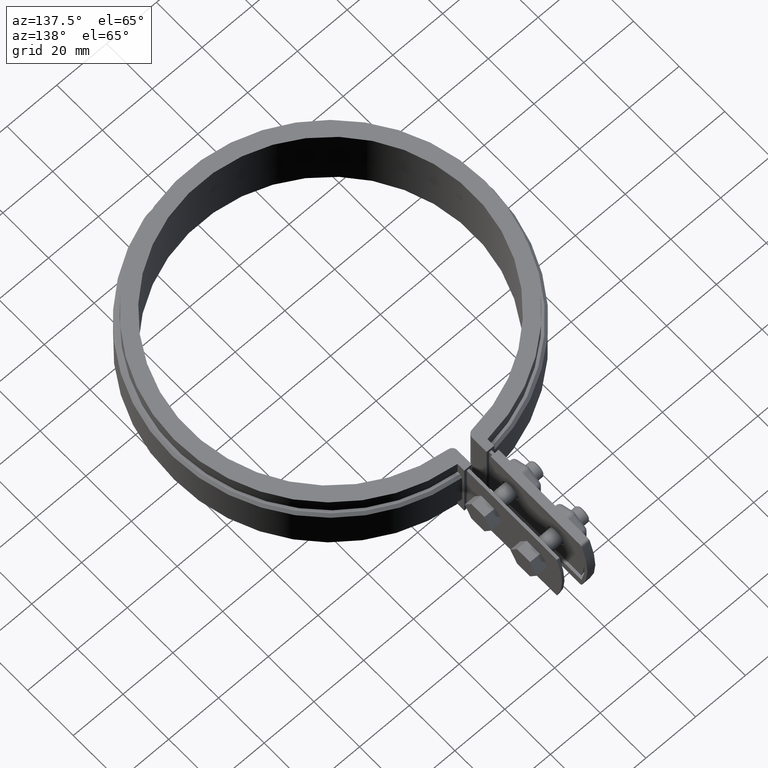
[diagram: clean part render]
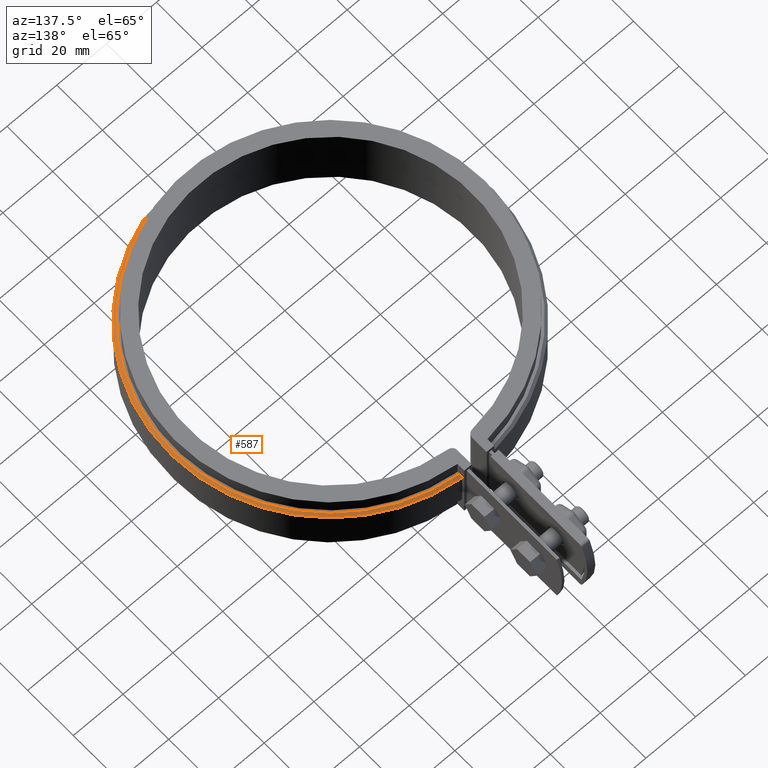
[diagram: same view with one face highlighted and labeled with its STEP entity id]
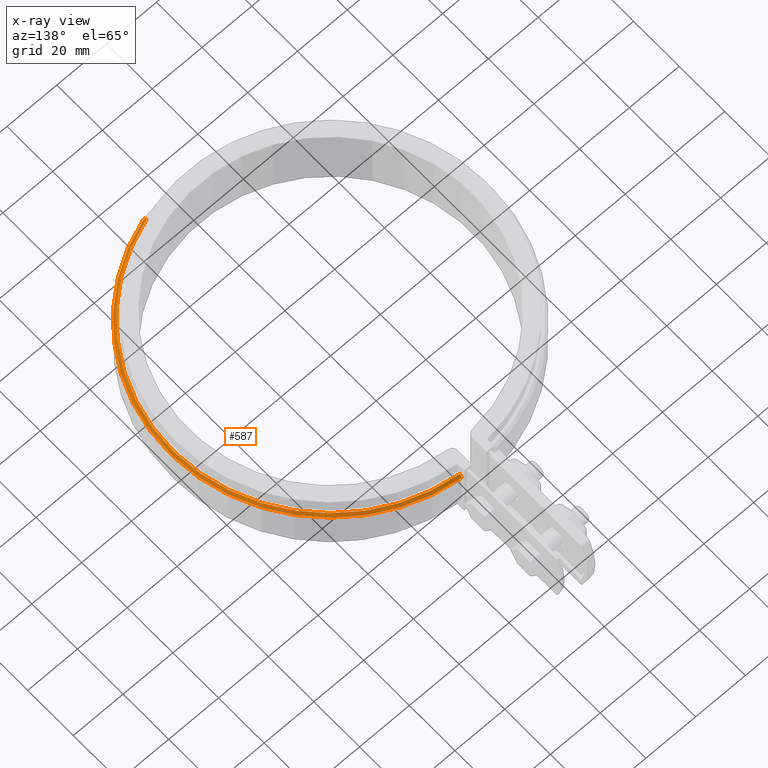
[diagram: x-ray of the same camera — body ghosted, the highlighted face saturated]
A machine part, auxiliary view. The second image highlights one B-rep face of the part: STEP entity #587.
The next image is the same camera in x-ray: the body ghosted, the highlighted face saturated — about 0% of this face is hidden behind the body in this view.
In plain terms, the highlighted conical surface has half-angle 45 deg.
Its self-contained STEP definition (entity closure, byte-faithful):
#587 = ADVANCED_FACE( '', ( #1087 ), #1088, .T. );
#1087 = FACE_OUTER_BOUND( '', #2406, .T. );
#1088 = CONICAL_SURFACE( '', #2407, 64.5000000000000, 0.785398163397448 );
#2406 = EDGE_LOOP( '', ( #5227, #5228, #5229, #5230 ) );
#2407 = AXIS2_PLACEMENT_3D( '', #5231, #5232, #5233 );
#5227 = ORIENTED_EDGE( '', *, *, #7402, .F. );
#5228 = ORIENTED_EDGE( '', *, *, #7395, .F. );
#5229 = ORIENTED_EDGE( '', *, *, #7301, .F. );
#5230 = ORIENTED_EDGE( '', *, *, #7252, .F. );
#5231 = CARTESIAN_POINT( '', ( 8.67361737988404E-016, 1.38777878078145E-014, 7.50000000000000 ) );
#5232 = DIRECTION( '', ( 0.000000000000000, 0.000000000000000, -1.00000000000000 ) );
#5233 = DIRECTION( '', ( -1.00000000000000, 0.000000000000000, 0.000000000000000 ) );
#7252 = EDGE_CURVE( '', #8360, #8362, #8363, .T. );
#7301 = EDGE_CURVE( '', #8362, #8452, #8453, .T. );
#7395 = EDGE_CURVE( '', #8452, #8591, #8592, .T. );
#7402 = EDGE_CURVE( '', #8591, #8360, #8601, .F. );
#8360 = VERTEX_POINT( '', #11513 );
#8362 = VERTEX_POINT( '', #11516 );
#8363 = CIRCLE( '', #11517, 64.5000000000000 );
#8452 = VERTEX_POINT( '', #12068 );
#8453 = LINE( '', #12069, #12070 );
#8591 = VERTEX_POINT( '', #12423 );
#8592 = CIRCLE( '', #12424, 63.5000000000000 );
#8601 = B_SPLINE_CURVE_WITH_KNOTS( '', 3, ( #12441, #12442, #12443, #12444 ), .UNSPECIFIED., .F., .F., ( 4, 4 ), ( 707.015762271910, 707.017179617428 ), .UNSPECIFIED. );
#11513 = CARTESIAN_POINT( '', ( 6.00000000000000, 64.2203238858230, 7.50000000000000 ) );
#11516 = CARTESIAN_POINT( '', ( 18.3698391239513, -61.8287878787879, 7.50000000000000 ) );
#11517 = AXIS2_PLACEMENT_3D( '', #14126, #14127, #14128 );
#12068 = CARTESIAN_POINT( '', ( 18.0850354166032, -60.8702020202020, 8.50000000000000 ) );
#12069 = CARTESIAN_POINT( '', ( 18.3698391239513, -61.8287878787879, 7.50000000000000 ) );
#12070 = VECTOR( '', #14177, 1000.00000000000 );
#12423 = CARTESIAN_POINT( '', ( 6.00000000000000, 63.2158998986806, 8.50000000000000 ) );
#12424 = AXIS2_PLACEMENT_3D( '', #14302, #14303, #14304 );
#12441 = CARTESIAN_POINT( '', ( 6.00000000000000, 64.2203238857845, 7.50000000003833 ) );
#12442 = CARTESIAN_POINT( '', ( 6.00000000000000, 63.8855273457462, 7.83334484092377 ) );
#12443 = CARTESIAN_POINT( '', ( 6.00000000000000, 63.5507195312588, 8.16667835626486 ) );
#12444 = CARTESIAN_POINT( '', ( 6.00000000000000, 63.2158998987026, 8.49999999997806 ) );
#14126 = CARTESIAN_POINT( '', ( 8.67361737988404E-016, 1.38777878078145E-014, 7.50000000000000 ) );
#14127 = DIRECTION( '', ( 0.000000000000000, 0.000000000000000, -1.00000000000000 ) );
#14128 = DIRECTION( '', ( -1.00000000000000, 0.000000000000000, 0.000000000000000 ) );
#14177 = DIRECTION( '', ( -0.201386632772898, 0.677822560955590, 0.707106781186547 ) );
#14302 = CARTESIAN_POINT( '', ( 8.67361737988404E-016, 1.38777878078145E-014, 8.50000000000000 ) );
#14303 = DIRECTION( '', ( 0.000000000000000, 0.000000000000000, 1.00000000000000 ) );
#14304 = DIRECTION( '', ( 1.00000000000000, 0.000000000000000, 0.000000000000000 ) );